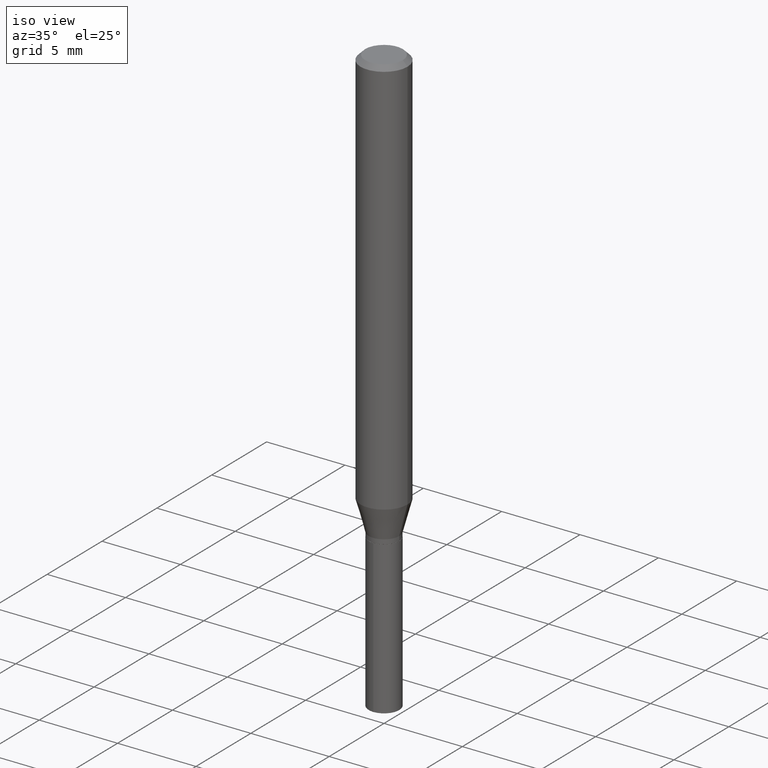
[diagram: clean part render]
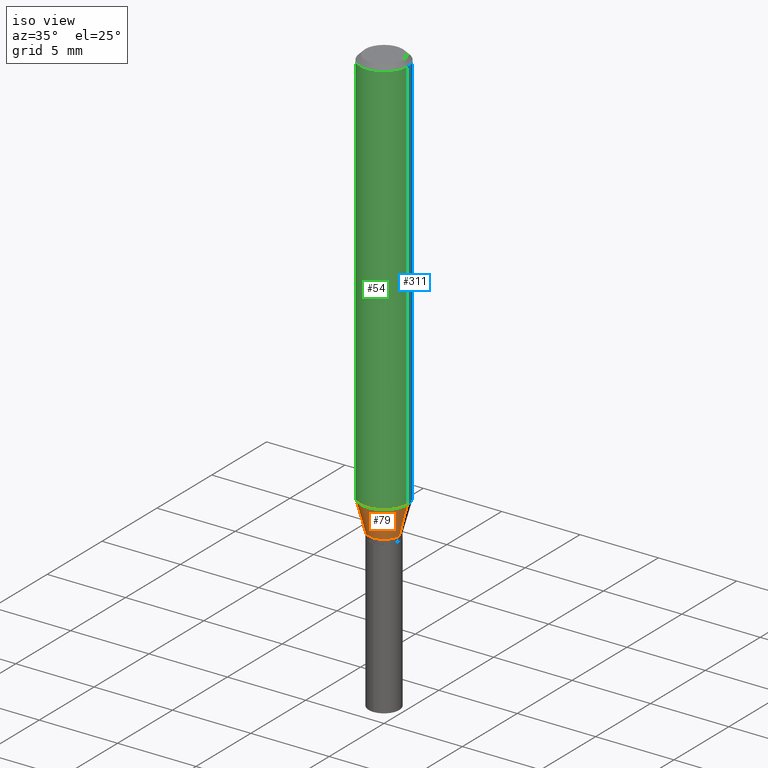
[diagram: same view with three faces highlighted in distinct colors, each labeled with its STEP entity id]
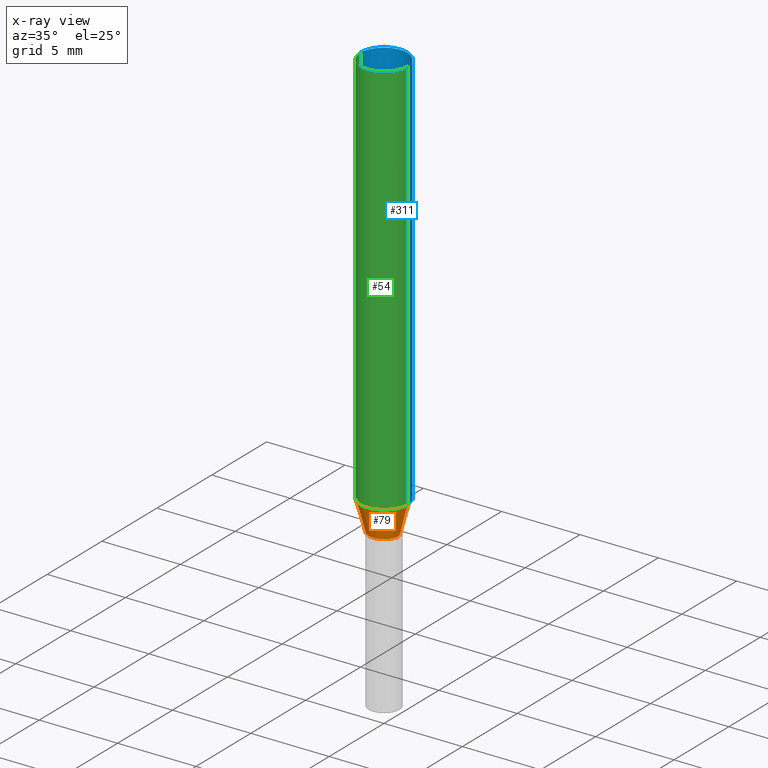
[diagram: x-ray of the same camera — body ghosted, the three highlighted faces saturated]
A machine part, iso view with three faces highlighted in distinct colors.
The next image is the same camera in x-ray (body ghosted, the three faces saturated) — at least one of them is partly hidden behind the body in this view.
Their STEP definitions:

[orange] entity #79 — the highlighted conical surface has half-angle 15 deg.
#7 = CARTESIAN_POINT ( 'NONE',  ( 2.648442717098502966E-29, -3.781274289967126614E-15, -1.082999999999999963 ) ) ;
#20 = CARTESIAN_POINT ( 'NONE',  ( -0.03840000000000000357, -3.508425879435247821E-15, -1.082999999999999963 ) ) ;
#24 = VERTEX_POINT ( 'NONE', #88 ) ;
#30 = ORIENTED_EDGE ( 'NONE', *, *, #318, .F. ) ;
#41 = FACE_OUTER_BOUND ( 'NONE', #301, .T. ) ;
#53 = CARTESIAN_POINT ( 'NONE',  ( 0.03840000000000000357, -4.049420056790279028E-15, -1.082999999999999963 ) ) ;
#66 = ORIENTED_EDGE ( 'NONE', *, *, #304, .T. ) ;
#79 = ADVANCED_FACE ( 'NONE', ( #41 ), #416, .T. ) ;
#88 = CARTESIAN_POINT ( 'NONE',  ( 0.05905000000000011628, -3.924540770342018857E-15, -1.005933150823702382 ) ) ;
#134 = EDGE_CURVE ( 'NONE', #156, #24, #465, .T. ) ;
#138 = DIRECTION ( 'NONE',  ( -0.2588190451025211836, 5.211531920934547886E-15, 0.9659258262890679791 ) ) ;
#144 = ORIENTED_EDGE ( 'NONE', *, *, #448, .F. ) ;
#156 = VERTEX_POINT ( 'NONE', #53 ) ;
#176 = DIRECTION ( 'NONE',  ( -2.445468806185136597E-29, 3.491481338843145583E-15, 1.000000000000000000 ) ) ;
#218 = CARTESIAN_POINT ( 'NONE',  ( -0.03840000000000000357, -3.527629026798885149E-15, -1.082999999999999963 ) ) ;
#219 = ORIENTED_EDGE ( 'NONE', *, *, #134, .T. ) ;
#220 = VECTOR ( 'NONE', #138, 39.37007874015748854 ) ;
#228 = CARTESIAN_POINT ( 'NONE',  ( 0.03840000000000000357, -4.049420056790279028E-15, -1.082999999999999963 ) ) ;
#233 = DIRECTION ( 'NONE',  ( -2.445468806185136597E-29, 3.491481338843145583E-15, 1.000000000000000000 ) ) ;
#242 = CARTESIAN_POINT ( 'NONE',  ( 2.648442717098502966E-29, -3.781274289967126614E-15, -1.082999999999999963 ) ) ;
#254 = AXIS2_PLACEMENT_3D ( 'NONE', #7, #233, #428 ) ;
#271 = CIRCLE ( 'NONE', #417, 0.05905000000000011628 ) ;
#273 = DIRECTION ( 'NONE',  ( 0.2588190451025211836, 1.565188264969622559E-15, 0.9659258262890679791 ) ) ;
#284 = VERTEX_POINT ( 'NONE', #475 ) ;
#288 = VECTOR ( 'NONE', #273, 39.37007874015748854 ) ;
#289 = DIRECTION ( 'NONE',  ( 1.000000000000000000, -6.982962677686264344E-15, 0.000000000000000000 ) ) ;
#301 = EDGE_LOOP ( 'NONE', ( #30, #66, #219, #144 ) ) ;
#304 = EDGE_CURVE ( 'NONE', #443, #156, #437, .T. ) ;
#318 = EDGE_CURVE ( 'NONE', #443, #284, #442, .T. ) ;
#370 = DIRECTION ( 'NONE',  ( -2.445468806185136597E-29, 3.491481338843145583E-15, 1.000000000000000000 ) ) ;
#380 = AXIS2_PLACEMENT_3D ( 'NONE', #242, #176, #289 ) ;
#416 = CONICAL_SURFACE ( 'NONE', #254, 0.03840000000000000357, 0.2617993877991499074 ) ;
#417 = AXIS2_PLACEMENT_3D ( 'NONE', #436, #370, #447 ) ;
#428 = DIRECTION ( 'NONE',  ( 1.000000000000000000, -6.982962677686264344E-15, 0.000000000000000000 ) ) ;
#436 = CARTESIAN_POINT ( 'NONE',  ( 2.459978141446892264E-29, -3.512196824224644331E-15, -1.005933150823702382 ) ) ;
#437 = CIRCLE ( 'NONE', #380, 0.03840000000000000357 ) ;
#442 = LINE ( 'NONE', #20, #220 ) ;
#443 = VERTEX_POINT ( 'NONE', #218 ) ;
#447 = DIRECTION ( 'NONE',  ( 1.000000000000000000, -6.982962677686266711E-15, 0.000000000000000000 ) ) ;
#448 = EDGE_CURVE ( 'NONE', #284, #24, #271, .T. ) ;
#465 = LINE ( 'NONE', #228, #288 ) ;
#475 = CARTESIAN_POINT ( 'NONE',  ( -0.05905000000000011628, -3.092621338758304049E-15, -1.005933150823702382 ) ) ;

[blue] entity #311 — the highlighted cylindrical surface (edge-blend (fillet) strip) has radius 1.4999 mm, axis along (-0, 0, 1).
#1 = CARTESIAN_POINT ( 'NONE',  ( -0.05904999999999999832, -1.357140123951850551E-15, -0.01181000000000007044 ) ) ;
#12 = DIRECTION ( 'NONE',  ( 1.000000000000000000, -6.982962677686266711E-15, 0.000000000000000000 ) ) ;
#19 = CIRCLE ( 'NONE', #302, 0.05904999999999999832 ) ;
#24 = VERTEX_POINT ( 'NONE', #88 ) ;
#33 = VERTEX_POINT ( 'NONE', #1 ) ;
#68 = VECTOR ( 'NONE', #275, 39.37007874015748143 ) ;
#78 = ORIENTED_EDGE ( 'NONE', *, *, #471, .T. ) ;
#88 = CARTESIAN_POINT ( 'NONE',  ( 0.05905000000000011628, -3.924540770342018857E-15, -1.005933150823702382 ) ) ;
#92 = CARTESIAN_POINT ( 'NONE',  ( 2.888098660104663766E-31, -4.123439461173779647E-17, -0.01181000000000007044 ) ) ;
#103 = DIRECTION ( 'NONE',  ( 1.000000000000000000, -6.982962677686266711E-15, 0.000000000000000000 ) ) ;
#110 = CARTESIAN_POINT ( 'NONE',  ( 2.459978141446892264E-29, -3.512196824224644331E-15, -1.005933150823702382 ) ) ;
#128 = LINE ( 'NONE', #168, #68 ) ;
#143 = DIRECTION ( 'NONE',  ( -2.445468806185136877E-29, 3.491481338843145188E-15, 1.000000000000000000 ) ) ;
#149 = EDGE_CURVE ( 'NONE', #284, #33, #128, .T. ) ;
#151 = VECTOR ( 'NONE', #143, 39.37007874015748143 ) ;
#168 = CARTESIAN_POINT ( 'NONE',  ( -0.05905000000000006077, 4.195754854663395916E-16, -2.904631170795524694E-30 ) ) ;
#174 = LINE ( 'NONE', #210, #151 ) ;
#181 = DIRECTION ( 'NONE',  ( -2.445468806185136597E-29, 3.491481338843145583E-15, 1.000000000000000000 ) ) ;
#191 = VERTEX_POINT ( 'NONE', #287 ) ;
#210 = CARTESIAN_POINT ( 'NONE',  ( 0.05905000000000006077, -4.123439461173744764E-16, 2.879382386107503023E-30 ) ) ;
#229 = DIRECTION ( 'NONE',  ( -2.445468806185136597E-29, 3.491481338843145583E-15, 1.000000000000000000 ) ) ;
#243 = EDGE_CURVE ( 'NONE', #24, #191, #174, .T. ) ;
#245 = ORIENTED_EDGE ( 'NONE', *, *, #243, .F. ) ;
#275 = DIRECTION ( 'NONE',  ( -2.445468806185136877E-29, 3.491481338843145188E-15, 1.000000000000000000 ) ) ;
#284 = VERTEX_POINT ( 'NONE', #475 ) ;
#287 = CARTESIAN_POINT ( 'NONE',  ( 0.05904999999999999832, -4.535783407291118600E-16, -0.01181000000000007044 ) ) ;
#302 = AXIS2_PLACEMENT_3D ( 'NONE', #92, #229, #12 ) ;
#311 = ADVANCED_FACE ( 'NONE', ( #367 ), #322, .T. ) ;
#322 = CYLINDRICAL_SURFACE ( 'NONE', #460, 0.05905000000000006077 ) ;
#343 = ORIENTED_EDGE ( 'NONE', *, *, #350, .F. ) ;
#350 = EDGE_CURVE ( 'NONE', #191, #33, #19, .T. ) ;
#367 = FACE_OUTER_BOUND ( 'NONE', #423, .T. ) ;
#373 = DIRECTION ( 'NONE',  ( -2.445468806185136597E-29, 3.491481338843145583E-15, 1.000000000000000000 ) ) ;
#377 = ORIENTED_EDGE ( 'NONE', *, *, #149, .T. ) ;
#381 = AXIS2_PLACEMENT_3D ( 'NONE', #110, #373, #103 ) ;
#403 = CARTESIAN_POINT ( 'NONE',  ( 0.000000000000000000, 0.000000000000000000, 0.000000000000000000 ) ) ;
#423 = EDGE_LOOP ( 'NONE', ( #78, #377, #343, #245 ) ) ;
#449 = CIRCLE ( 'NONE', #381, 0.05905000000000011628 ) ;
#460 = AXIS2_PLACEMENT_3D ( 'NONE', #403, #181, #472 ) ;
#471 = EDGE_CURVE ( 'NONE', #24, #284, #449, .T. ) ;
#472 = DIRECTION ( 'NONE',  ( 1.000000000000000000, -6.982962677686266711E-15, 4.876176775795935793E-29 ) ) ;
#475 = CARTESIAN_POINT ( 'NONE',  ( -0.05905000000000011628, -3.092621338758304049E-15, -1.005933150823702382 ) ) ;

[green] entity #54 — the highlighted cylindrical surface (edge-blend (fillet) strip) has radius 1.4999 mm, axis along (-0, 0, 1).
#1 = CARTESIAN_POINT ( 'NONE',  ( -0.05904999999999999832, -1.357140123951850551E-15, -0.01181000000000007044 ) ) ;
#10 = DIRECTION ( 'NONE',  ( -2.445468806185136597E-29, 3.491481338843145583E-15, 1.000000000000000000 ) ) ;
#24 = VERTEX_POINT ( 'NONE', #88 ) ;
#33 = VERTEX_POINT ( 'NONE', #1 ) ;
#35 = EDGE_LOOP ( 'NONE', ( #223, #198, #62, #193 ) ) ;
#39 = CARTESIAN_POINT ( 'NONE',  ( 0.000000000000000000, 0.000000000000000000, 0.000000000000000000 ) ) ;
#54 = ADVANCED_FACE ( 'NONE', ( #351 ), #387, .T. ) ;
#62 = ORIENTED_EDGE ( 'NONE', *, *, #243, .T. ) ;
#67 = CIRCLE ( 'NONE', #278, 0.05904999999999999832 ) ;
#68 = VECTOR ( 'NONE', #275, 39.37007874015748143 ) ;
#88 = CARTESIAN_POINT ( 'NONE',  ( 0.05905000000000011628, -3.924540770342018857E-15, -1.005933150823702382 ) ) ;
#126 = DIRECTION ( 'NONE',  ( -2.445468806185136597E-29, 3.491481338843145583E-15, 1.000000000000000000 ) ) ;
#128 = LINE ( 'NONE', #168, #68 ) ;
#135 = DIRECTION ( 'NONE',  ( 1.000000000000000000, -6.982962677686266711E-15, 0.000000000000000000 ) ) ;
#143 = DIRECTION ( 'NONE',  ( -2.445468806185136877E-29, 3.491481338843145188E-15, 1.000000000000000000 ) ) ;
#149 = EDGE_CURVE ( 'NONE', #284, #33, #128, .T. ) ;
#151 = VECTOR ( 'NONE', #143, 39.37007874015748143 ) ;
#168 = CARTESIAN_POINT ( 'NONE',  ( -0.05905000000000006077, 4.195754854663395916E-16, -2.904631170795524694E-30 ) ) ;
#174 = LINE ( 'NONE', #210, #151 ) ;
#191 = VERTEX_POINT ( 'NONE', #287 ) ;
#193 = ORIENTED_EDGE ( 'NONE', *, *, #372, .F. ) ;
#198 = ORIENTED_EDGE ( 'NONE', *, *, #448, .T. ) ;
#210 = CARTESIAN_POINT ( 'NONE',  ( 0.05905000000000006077, -4.123439461173744764E-16, 2.879382386107503023E-30 ) ) ;
#223 = ORIENTED_EDGE ( 'NONE', *, *, #149, .F. ) ;
#243 = EDGE_CURVE ( 'NONE', #24, #191, #174, .T. ) ;
#271 = CIRCLE ( 'NONE', #417, 0.05905000000000011628 ) ;
#275 = DIRECTION ( 'NONE',  ( -2.445468806185136877E-29, 3.491481338843145188E-15, 1.000000000000000000 ) ) ;
#278 = AXIS2_PLACEMENT_3D ( 'NONE', #348, #10, #135 ) ;
#281 = DIRECTION ( 'NONE',  ( 1.000000000000000000, -6.982962677686266711E-15, 4.876176775795935793E-29 ) ) ;
#284 = VERTEX_POINT ( 'NONE', #475 ) ;
#287 = CARTESIAN_POINT ( 'NONE',  ( 0.05904999999999999832, -4.535783407291118600E-16, -0.01181000000000007044 ) ) ;
#347 = AXIS2_PLACEMENT_3D ( 'NONE', #39, #126, #281 ) ;
#348 = CARTESIAN_POINT ( 'NONE',  ( 2.888098660104663766E-31, -4.123439461173779647E-17, -0.01181000000000007044 ) ) ;
#351 = FACE_OUTER_BOUND ( 'NONE', #35, .T. ) ;
#370 = DIRECTION ( 'NONE',  ( -2.445468806185136597E-29, 3.491481338843145583E-15, 1.000000000000000000 ) ) ;
#372 = EDGE_CURVE ( 'NONE', #33, #191, #67, .T. ) ;
#387 = CYLINDRICAL_SURFACE ( 'NONE', #347, 0.05905000000000006077 ) ;
#417 = AXIS2_PLACEMENT_3D ( 'NONE', #436, #370, #447 ) ;
#436 = CARTESIAN_POINT ( 'NONE',  ( 2.459978141446892264E-29, -3.512196824224644331E-15, -1.005933150823702382 ) ) ;
#447 = DIRECTION ( 'NONE',  ( 1.000000000000000000, -6.982962677686266711E-15, 0.000000000000000000 ) ) ;
#448 = EDGE_CURVE ( 'NONE', #284, #24, #271, .T. ) ;
#475 = CARTESIAN_POINT ( 'NONE',  ( -0.05905000000000011628, -3.092621338758304049E-15, -1.005933150823702382 ) ) ;